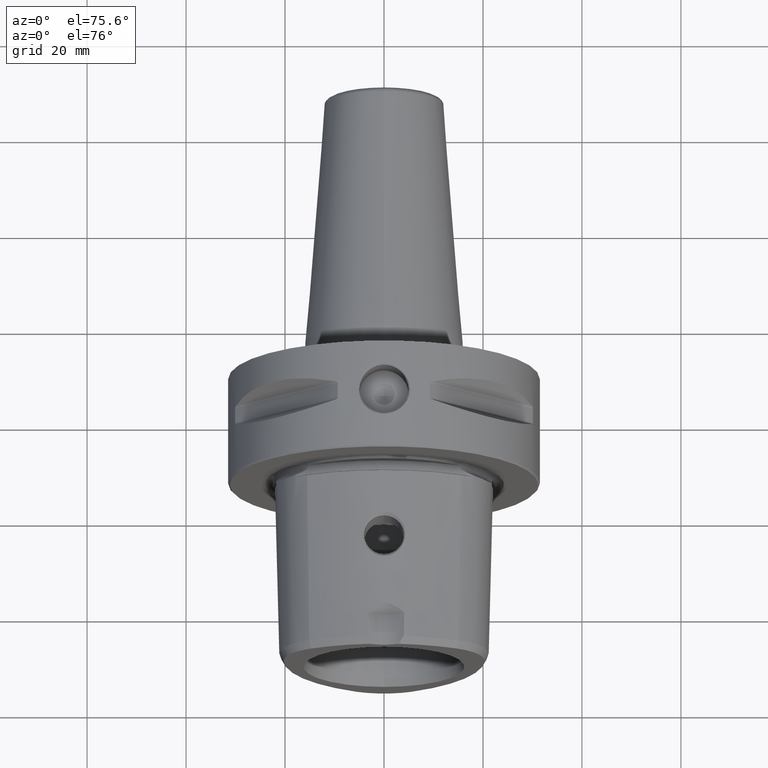
[diagram: clean part render]
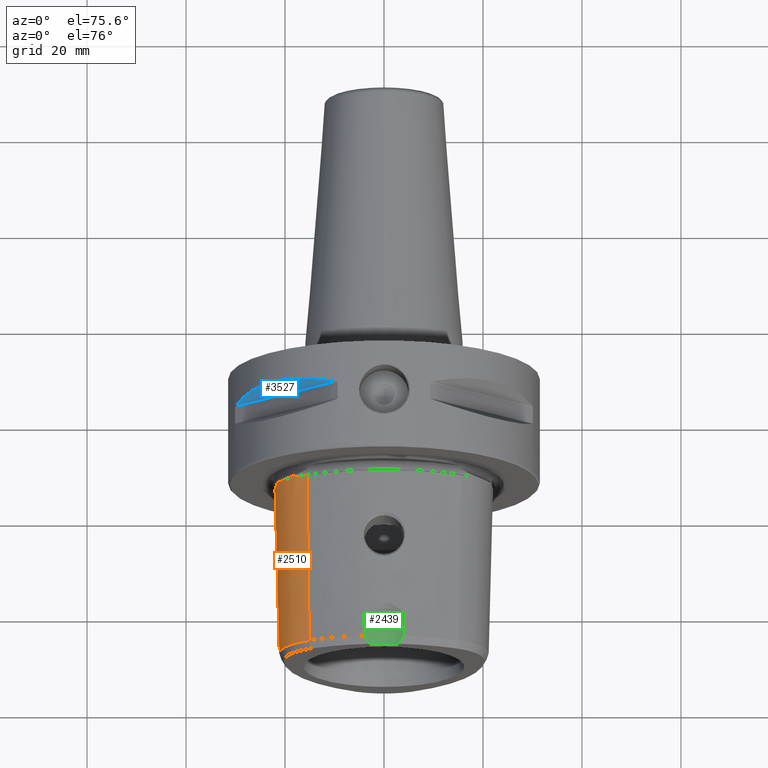
[diagram: same view with three faces highlighted in distinct colors, each labeled with its STEP entity id]
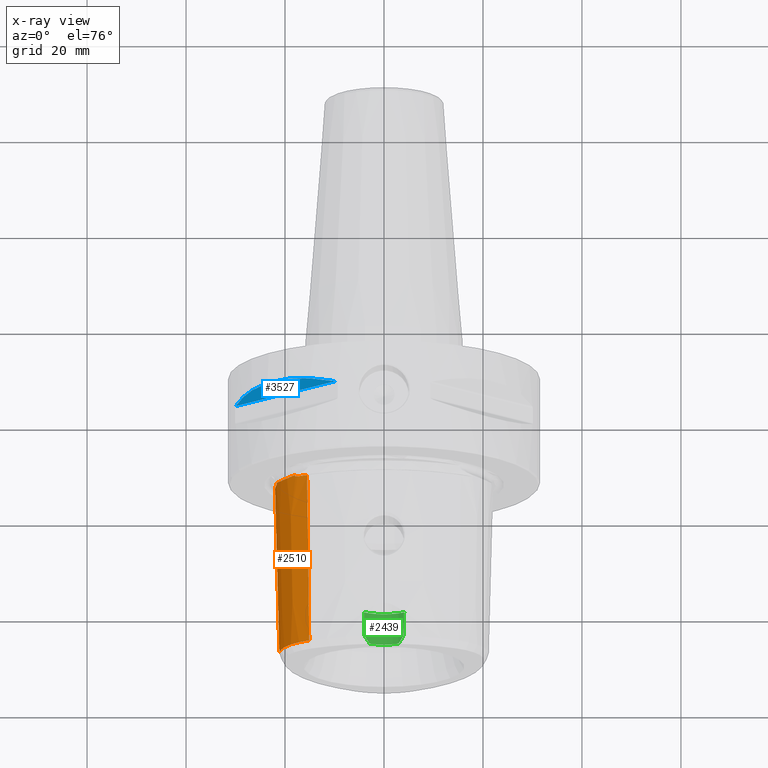
[diagram: x-ray of the same camera — body ghosted, the three highlighted faces saturated]
A machine part, auxiliary view with three faces highlighted in distinct colors.
The next image is the same camera in x-ray (body ghosted, the three faces saturated) — at least one of them is partly hidden behind the body in this view.
Their STEP definitions:

[orange] entity #2510 — the highlighted conical surface has half-angle 1.439 deg.
#147=CARTESIAN_POINT('',(-2.168902906534E1,-1.746971249170E0,8.186957442652E0));
#154=CARTESIAN_POINT('',(-1.793462765771E1,-1.746971249170E0,1.468977143267E1));
#508=DIRECTION('',(-1.255777780594E-2,9.996845546803E-1,2.175070919006E-2));
#509=VECTOR('',#508,3.431088629756E1);
#510=CARTESIAN_POINT('',(-1.510405282893E1,-3.65E1,1.571124463872E1));
#511=LINE('',#510,#509);
#552=CARTESIAN_POINT('',(-2.202010036957E1,-2.199936910936E0,5.224871130596E0));
#553=CARTESIAN_POINT('',(-2.202010036957E1,-2.199936910936E0,5.313450229064E0));
#554=CARTESIAN_POINT('',(-2.201828506148E1,-2.199913733057E0,5.483990495859E0));
#555=CARTESIAN_POINT('',(-2.201134037997E1,-2.199764583668E0,5.719067531287E0));
#556=CARTESIAN_POINT('',(-2.200117656757E1,-2.199392855793E0,5.935743403557E0));
#557=CARTESIAN_POINT('',(-2.198860707624E1,-2.198683608775E0,6.135404295798E0));
#558=CARTESIAN_POINT('',(-2.197429587373E1,-2.197538869152E0,6.319465420987E0));
#559=CARTESIAN_POINT('',(-2.195878048977E1,-2.195886930513E0,6.489183552910E0));
#560=CARTESIAN_POINT('',(-2.194249525569E1,-2.193682966497E0,6.645715457185E0));
#561=CARTESIAN_POINT('',(-2.192578883144E1,-2.190905721795E0,6.790117700278E0));
#562=CARTESIAN_POINT('',(-2.190893976831E1,-2.187552865413E0,6.923354597004E0));
#563=CARTESIAN_POINT('',(-2.189216886843E1,-2.183636195676E0,7.046306706400E0));
#564=CARTESIAN_POINT('',(-2.187564944559E1,-2.179177301842E0,7.159778881057E0));
#565=CARTESIAN_POINT('',(-2.185951580585E1,-2.174203890185E0,7.264507263783E0));
#566=CARTESIAN_POINT('',(-2.184387025935E1,-2.168746772742E0,7.361165698900E0));
#567=CARTESIAN_POINT('',(-2.182878896326E1,-2.162837448864E0,7.450371277668E0));
#568=CARTESIAN_POINT('',(-2.181432674602E1,-2.156506142277E0,7.532689519417E0));
#569=CARTESIAN_POINT('',(-2.180052100305E1,-2.149780098490E0,7.608639599094E0));
#570=CARTESIAN_POINT('',(-2.178739526656E1,-2.142682218305E0,7.678697171789E0));
#571=CARTESIAN_POINT('',(-2.177496215309E1,-2.135229749279E0,7.743297359324E0));
#572=CARTESIAN_POINT('',(-2.176322580334E1,-2.127432837364E0,7.802837672955E0));
#573=CARTESIAN_POINT('',(-2.175218406350E1,-2.119292804325E0,7.857680042621E0));
#574=CARTESIAN_POINT('',(-2.174183043989E1,-2.110799810021E0,7.908152254458E0));
#575=CARTESIAN_POINT('',(-2.173215596914E1,-2.101929406762E0,7.954548465793E0));
#576=CARTESIAN_POINT('',(-2.172315172762E1,-2.092637625183E0,7.997125821421E0));
#577=CARTESIAN_POINT('',(-2.171481087263E1,-2.082852076065E0,8.036103047357E0));
#578=CARTESIAN_POINT('',(-2.170713133608E1,-2.072454062778E0,8.071656081692E0));
#579=CARTESIAN_POINT('',(-2.170012669870E1,-2.061256541772E0,8.103878287868E0));
#580=CARTESIAN_POINT('',(-2.169383417972E1,-2.048927500531E0,8.132759392694E0));
#581=CARTESIAN_POINT('',(-2.168837890287E1,-2.034920692420E0,8.157924861110E0));
#582=CARTESIAN_POINT('',(-2.168401050674E1,-2.017899461639E0,8.178547840457E0));
#583=CARTESIAN_POINT('',(-2.168266250964E1,-2.003214212505E0,8.185909498001E0));
#584=CARTESIAN_POINT('',(-2.168286717235E1,-1.994976888878E0,8.185943186742E0));
#586=DIRECTION('',(2.483790482961E-2,-9.996831317252E-1,-4.088352688433E-3));
#587=VECTOR('',#586,2.480842497356E-1);
#588=CARTESIAN_POINT('',(-2.168902906534E1,-1.746971249170E0,8.186957442652E0));
#589=LINE('',#588,#587);
#590=CARTESIAN_POINT('',(-2.168902906534E1,-1.746971249170E0,8.186957442652E0));
#591=CARTESIAN_POINT('',(-2.154174266391E1,-1.827970129837E0,8.806513181206E0));
#592=CARTESIAN_POINT('',(-2.115721745400E1,-1.949336030262E0,1.002213380082E1));
#593=CARTESIAN_POINT('',(-2.032664343815E1,-2.009730819679E0,1.173562637588E1));
#594=CARTESIAN_POINT('',(-1.925798277759E1,-1.949330900499E0,1.331168143785E1));
#595=CARTESIAN_POINT('',(-1.839751311818E1,-1.827966219514E0,1.425246091086E1));
#596=CARTESIAN_POINT('',(-1.793462765771E1,-1.746971249170E0,1.468977143267E1));
#598=DIRECTION('',(-1.595956970232E-2,9.996831317252E-1,1.946608021525E-2));
#599=VECTOR('',#598,2.480842497357E-1);
#600=CARTESIAN_POINT('',(-1.793066833983E1,-1.994976888878E0,1.468494220477E1));
#601=LINE('',#600,#599);
#602=CARTESIAN_POINT('',(-1.793066833983E1,-1.994976888878E0,1.468494220477E1));
#603=CARTESIAN_POINT('',(-1.793053603458E1,-2.003264234523E0,1.468478083199E1));
#604=CARTESIAN_POINT('',(-1.792476534015E1,-2.018004063528E0,1.468969220777E1));
#605=CARTESIAN_POINT('',(-1.790910815403E1,-2.034958022813E0,1.470377145192E1));
#606=CARTESIAN_POINT('',(-1.789006979660E1,-2.048941331119E0,1.472105319385E1));
#607=CARTESIAN_POINT('',(-1.786824793642E1,-2.061244642322E0,1.474090353762E1));
#608=CARTESIAN_POINT('',(-1.784388692597E1,-2.072427316018E0,1.476304278589E1));
#609=CARTESIAN_POINT('',(-1.781697790120E1,-2.082814748309E0,1.478743302659E1));
#610=CARTESIAN_POINT('',(-1.778743318587E1,-2.092593142949E0,1.481410928314E1));
#611=CARTESIAN_POINT('',(-1.775510576467E1,-2.101878953027E0,1.484315752383E1));
#612=CARTESIAN_POINT('',(-1.771980997012E1,-2.110744478235E0,1.487469288026E1));
#613=CARTESIAN_POINT('',(-1.768132636302E1,-2.119233865083E0,1.490885287543E1));
#614=CARTESIAN_POINT('',(-1.763940420582E1,-2.127371538306E0,1.494579290993E1));
#615=CARTESIAN_POINT('',(-1.759376260416E1,-2.135167273846E0,1.498568288517E1));
#616=CARTESIAN_POINT('',(-1.754408899277E1,-2.142619685856E0,1.502870596449E1));
#617=CARTESIAN_POINT('',(-1.749003576914E1,-2.149718696268E0,1.507505857637E1));
#618=CARTESIAN_POINT('',(-1.743121834362E1,-2.156447065383E0,1.512494872777E1));
#619=CARTESIAN_POINT('',(-1.736721133286E1,-2.162781850770E0,1.517859538360E1));
#620=CARTESIAN_POINT('',(-1.729754455301E1,-2.168695702473E0,1.523622733658E1));
#621=CARTESIAN_POINT('',(-1.722169952368E1,-2.174158183316E0,1.529808090668E1));
#622=CARTESIAN_POINT('',(-1.713910303422E1,-2.179137519248E0,1.536439917177E1));
#623=CARTESIAN_POINT('',(-1.704911946176E1,-2.183602634031E0,1.543543102056E1));
#624=CARTESIAN_POINT('',(-1.695104306781E1,-2.187525559681E0,1.551142882366E1));
#625=CARTESIAN_POINT('',(-1.684408892593E1,-2.190884450841E0,1.559264555247E1));
#626=CARTESIAN_POINT('',(-1.672738245894E1,-2.193667267213E0,1.567933102493E1));
#627=CARTESIAN_POINT('',(-1.659994766294E1,-2.195876114728E0,1.577172674388E1));
#628=CARTESIAN_POINT('',(-1.646069272821E1,-2.197532078017E0,1.587006007900E1));
#629=CARTESIAN_POINT('',(-1.630839540982E1,-2.198679857915E0,1.597453433422E1));
#630=CARTESIAN_POINT('',(-1.614169740228E1,-2.199391161425E0,1.608531239633E1));
#631=CARTESIAN_POINT('',(-1.595901232316E1,-2.199764022414E0,1.620254175179E1));
#632=CARTESIAN_POINT('',(-1.575886009480E1,-2.199913608017E0,1.632613315317E1));
#633=CARTESIAN_POINT('',(-1.561180593810E1,-2.199936910936E0,1.641314139101E1));
#634=CARTESIAN_POINT('',(-1.553492131538E1,-2.199936910936E0,1.645753074864E1));
#636=CARTESIAN_POINT('',(-9.049742261193E0,-3.65E1,5.224871130596E0));
#637=DIRECTION('',(0.E0,1.E0,0.E0));
#638=DIRECTION('',(-1.E0,0.E0,0.E0));
#639=AXIS2_PLACEMENT_3D('',#636,#637,#638);
#641=DIRECTION('',(-2.511555561190E-2,9.996845546803E-1,0.E0));
#642=VECTOR('',#641,3.431088629756E1);
#643=CARTESIAN_POINT('',(-2.115836339667E1,-3.65E1,5.224871130596E0));
#644=LINE('',#643,#642);
#1948=VERTEX_POINT('',#602);
#1949=VERTEX_POINT('',#634);
#1957=VERTEX_POINT('',#154);
#1965=CARTESIAN_POINT('',(-2.202010036957E1,-2.199936910936E0,
5.224871130596E0));
#1966=VERTEX_POINT('',#1965);
#1971=VERTEX_POINT('',#584);
#1973=VERTEX_POINT('',#147);
#2041=CARTESIAN_POINT('',(-2.115836339667E1,-3.65E1,5.224871130596E0));
#2043=VERTEX_POINT('',#2041);
#2044=CARTESIAN_POINT('',(-1.510405282893E1,-3.65E1,1.571124463872E1));
#2045=VERTEX_POINT('',#2044);
#2492=CARTESIAN_POINT('',(-9.049742261193E0,-1.912348562459E1,
5.224871130596E0));
#2493=DIRECTION('',(0.E0,1.E0,0.E0));
#2494=DIRECTION('',(1.E0,0.E0,0.E0));
#2495=AXIS2_PLACEMENT_3D('',#2492,#2493,#2494);
#2496=CONICAL_SURFACE('',#2495,1.254517965896E1,1.439166666E0);
#2498=ORIENTED_EDGE('',*,*,#2497,.T.);
#2499=ORIENTED_EDGE('',*,*,#2187,.F.);
#2500=ORIENTED_EDGE('',*,*,#2211,.T.);
#2501=ORIENTED_EDGE('',*,*,#2264,.F.);
#2502=ORIENTED_EDGE('',*,*,#2483,.T.);
#2503=ORIENTED_EDGE('',*,*,#2467,.F.);
#2505=ORIENTED_EDGE('',*,*,#2504,.F.);
#2507=ORIENTED_EDGE('',*,*,#2506,.T.);
#2508=EDGE_LOOP('',(#2498,#2499,#2500,#2501,#2502,#2503,#2505,#2507));
#2509=FACE_OUTER_BOUND('',#2508,.F.);
#2510=ADVANCED_FACE('',(#2509),#2496,.T.);
#585=B_SPLINE_CURVE_WITH_KNOTS('',3,(#552,#553,#554,#555,#556,#557,#558,#559,
#560,#561,#562,#563,#564,#565,#566,#567,#568,#569,#570,#571,#572,#573,#574,#575,
#576,#577,#578,#579,#580,#581,#582,#583,#584),.UNSPECIFIED.,.F.,.F.,(4,1,1,1,1,
1,1,1,1,1,1,1,1,1,1,1,1,1,1,1,1,1,1,1,1,1,1,1,1,1,4),(0.E0,3.333333333333E-2,
6.666666666667E-2,1.E-1,1.333333333333E-1,1.666666666667E-1,2.E-1,
2.333333333333E-1,2.666666666667E-1,3.E-1,3.333333333333E-1,3.666666666667E-1,
4.E-1,4.333333333333E-1,4.666666666667E-1,5.E-1,5.333333333333E-1,
5.666666666667E-1,6.E-1,6.333333333333E-1,6.666666666667E-1,7.E-1,
7.333333333333E-1,7.666666666667E-1,8.E-1,8.333333333333E-1,8.666666666667E-1,
9.E-1,9.333333333333E-1,9.666666666667E-1,1.E0),.UNSPECIFIED.);
#597=B_SPLINE_CURVE_WITH_KNOTS('',3,(#590,#591,#592,#593,#594,#595,#596),
.UNSPECIFIED.,.F.,.F.,(4,1,1,1,4),(0.E0,2.5E-1,5.E-1,7.5E-1,1.E0),
.UNSPECIFIED.);
#635=B_SPLINE_CURVE_WITH_KNOTS('',3,(#602,#603,#604,#605,#606,#607,#608,#609,
#610,#611,#612,#613,#614,#615,#616,#617,#618,#619,#620,#621,#622,#623,#624,#625,
#626,#627,#628,#629,#630,#631,#632,#633,#634),.UNSPECIFIED.,.F.,.F.,(4,1,1,1,1,
1,1,1,1,1,1,1,1,1,1,1,1,1,1,1,1,1,1,1,1,1,1,1,1,1,4),(0.E0,3.333333333333E-2,
6.666666666667E-2,1.E-1,1.333333333333E-1,1.666666666667E-1,2.E-1,
2.333333333333E-1,2.666666666667E-1,3.E-1,3.333333333333E-1,3.666666666667E-1,
4.E-1,4.333333333333E-1,4.666666666667E-1,5.E-1,5.333333333333E-1,
5.666666666667E-1,6.E-1,6.333333333333E-1,6.666666666667E-1,7.E-1,
7.333333333333E-1,7.666666666667E-1,8.E-1,8.333333333333E-1,8.666666666667E-1,
9.E-1,9.333333333333E-1,9.666666666667E-1,1.E0),.UNSPECIFIED.);
#640=CIRCLE('',#639,1.210862113548E1);
#2187=EDGE_CURVE('',#1973,#1971,#589,.T.);
#2211=EDGE_CURVE('',#1973,#1957,#597,.T.);
#2264=EDGE_CURVE('',#1948,#1957,#601,.T.);
#2467=EDGE_CURVE('',#2045,#1949,#511,.T.);
#2483=EDGE_CURVE('',#1948,#1949,#635,.T.);
#2497=EDGE_CURVE('',#1966,#1971,#585,.T.);
#2504=EDGE_CURVE('',#2043,#2045,#640,.T.);
#2506=EDGE_CURVE('',#2043,#1966,#644,.T.);

[blue] entity #3527 — the highlighted planar face has unit normal (0.3536, 0.866, -0.3536).
#1415=CARTESIAN_POINT('',(-9.869412618966E0,1.389433756730E1,2.991395484647E1));
#1416=CARTESIAN_POINT('',(-1.238139844501E1,1.458150705601E1,2.908518363459E1));
#1417=CARTESIAN_POINT('',(-1.689097893205E1,1.553584740593E1,2.691325004580E1));
#1418=CARTESIAN_POINT('',(-2.245973816660E1,1.599114523220E1,2.245973816660E1));
#1419=CARTESIAN_POINT('',(-2.691325004580E1,1.553584740593E1,1.689097893205E1));
#1420=CARTESIAN_POINT('',(-2.908518363459E1,1.458150705601E1,1.238139844501E1));
#1421=CARTESIAN_POINT('',(-2.991395484647E1,1.389433756730E1,9.869412618966E0));
#1585=DIRECTION('',(7.071067811865E-1,0.E0,7.071067811865E-1));
#1586=VECTOR('',#1585,2.834726346969E1);
#1587=CARTESIAN_POINT('',(-2.991395484647E1,1.389433756730E1,9.869412618966E0));
#1588=LINE('',#1587,#1586);
#1926=CARTESIAN_POINT('',(-2.991395484647E1,1.389433756730E1,9.869412618966E0));
#1927=CARTESIAN_POINT('',(-9.869412618966E0,1.389433756730E1,2.991395484647E1));
#1928=VERTEX_POINT('',#1926);
#1929=VERTEX_POINT('',#1927);
#3518=CARTESIAN_POINT('',(1.689359558895E1,1.583937929011E1,6.144132280370E1));
#3519=DIRECTION('',(3.535533905933E-1,8.660254037844E-1,-3.535533905933E-1));
#3520=DIRECTION('',(6.123724356958E-1,-5.E-1,-6.123724356958E-1));
#3521=AXIS2_PLACEMENT_3D('',#3518,#3519,#3520);
#3522=PLANE('',#3521);
#3523=ORIENTED_EDGE('',*,*,#3512,.F.);
#3524=ORIENTED_EDGE('',*,*,#3395,.F.);
#3525=EDGE_LOOP('',(#3523,#3524));
#3526=FACE_OUTER_BOUND('',#3525,.F.);
#3527=ADVANCED_FACE('',(#3526),#3522,.F.);
#1422=B_SPLINE_CURVE_WITH_KNOTS('',3,(#1415,#1416,#1417,#1418,#1419,#1420,
#1421),.UNSPECIFIED.,.F.,.F.,(4,1,1,1,4),(0.E0,2.5E-1,5.E-1,7.5E-1,1.E0),
.UNSPECIFIED.);
#3395=EDGE_CURVE('',#1929,#1928,#1422,.T.);
#3512=EDGE_CURVE('',#1928,#1929,#1588,.T.);

[green] entity #2439 — the highlighted cylindrical surface (edge-blend (fillet) strip) has radius 6 mm, axis along (0, 1, 0).
#454=CARTESIAN_POINT('',(0.E0,-3.8E1,2.4E1));
#455=DIRECTION('',(0.E0,1.E0,0.E0));
#456=DIRECTION('',(4.836645555972E-1,0.E0,-8.752534476704E-1));
#457=AXIS2_PLACEMENT_3D('',#454,#455,#456);
#474=CARTESIAN_POINT('',(0.E0,-3.165E1,2.4E1));
#475=DIRECTION('',(0.E0,1.E0,0.E0));
#476=DIRECTION('',(6.805968584649E-1,0.E0,-7.326581168920E-1));
#477=AXIS2_PLACEMENT_3D('',#474,#475,#476);
#489=CARTESIAN_POINT('',(4.083581150789E0,-3.165E1,1.960405129865E1));
#490=CARTESIAN_POINT('',(4.070457658553E0,-3.220115328868E1,1.959186033620E1));
#491=CARTESIAN_POINT('',(4.044187665875E0,-3.329528064835E1,1.956767602542E1));
#492=CARTESIAN_POINT('',(4.004731201004E0,-3.491169764686E1,1.953199539320E1));
#493=CARTESIAN_POINT('',(3.978388771178E0,-3.597326597985E1,1.950859363950E1));
#494=CARTESIAN_POINT('',(3.965210897225E0,-3.65E1,1.949698961354E1));
#496=CARTESIAN_POINT('',(-3.965210897225E0,-3.65E1,1.949698961354E1));
#497=CARTESIAN_POINT('',(-3.978388761738E0,-3.597326635717E1,1.950859363119E1));
#498=CARTESIAN_POINT('',(-4.004731162626E0,-3.491169902479E1,1.953199536313E1));
#499=CARTESIAN_POINT('',(-4.044186600750E0,-3.329532457181E1,1.956767505534E1));
#500=CARTESIAN_POINT('',(-4.070457205245E0,-3.220117232647E1,1.959185991511E1));
#501=CARTESIAN_POINT('',(-4.083581150789E0,-3.165E1,1.960405129865E1));
#681=CARTESIAN_POINT('',(-2.901987333583E0,-3.8E1,1.874847931398E1));
#682=CARTESIAN_POINT('',(-3.028890284763E0,-3.785739398053E1,1.881860581236E1));
#683=CARTESIAN_POINT('',(-3.276920174043E0,-3.755548787067E1,1.896765710284E1));
#684=CARTESIAN_POINT('',(-3.631743271625E0,-3.705431684078E1,1.921740278639E1));
#685=CARTESIAN_POINT('',(-3.856125803281E0,-3.668973692817E1,1.940093267250E1));
#686=CARTESIAN_POINT('',(-3.965210897225E0,-3.65E1,1.949698961354E1));
#688=CARTESIAN_POINT('',(3.965210897225E0,-3.65E1,1.949698961354E1));
#689=CARTESIAN_POINT('',(3.856185781856E0,-3.668963260456E1,1.940098548776E1));
#690=CARTESIAN_POINT('',(3.631896273467E0,-3.705407894853E1,1.921752211057E1));
#691=CARTESIAN_POINT('',(3.277103698003E0,-3.755525061720E1,1.896777462187E1));
#692=CARTESIAN_POINT('',(3.028976352836E0,-3.785729726233E1,1.881865337353E1));
#693=CARTESIAN_POINT('',(2.901987333583E0,-3.8E1,1.874847931398E1));
#1862=VERTEX_POINT('',#496);
#1863=VERTEX_POINT('',#501);
#1864=VERTEX_POINT('',#489);
#1865=VERTEX_POINT('',#494);
#1944=CARTESIAN_POINT('',(2.901987333583E0,-3.8E1,1.874847931398E1));
#1945=CARTESIAN_POINT('',(-2.901987333583E0,-3.8E1,1.874847931398E1));
#1946=VERTEX_POINT('',#1944);
#1947=VERTEX_POINT('',#1945);
#2421=CARTESIAN_POINT('',(0.E0,-3.86175E1,2.4E1));
#2422=DIRECTION('',(0.E0,1.E0,0.E0));
#2423=DIRECTION('',(0.E0,0.E0,-1.E0));
#2424=AXIS2_PLACEMENT_3D('',#2421,#2422,#2423);
#2425=CYLINDRICAL_SURFACE('',#2424,6.E0);
#2427=ORIENTED_EDGE('',*,*,#2426,.F.);
#2429=ORIENTED_EDGE('',*,*,#2428,.T.);
#2431=ORIENTED_EDGE('',*,*,#2430,.T.);
#2432=ORIENTED_EDGE('',*,*,#2397,.T.);
#2434=ORIENTED_EDGE('',*,*,#2433,.T.);
#2436=ORIENTED_EDGE('',*,*,#2435,.T.);
#2437=EDGE_LOOP('',(#2427,#2429,#2431,#2432,#2434,#2436));
#2438=FACE_OUTER_BOUND('',#2437,.F.);
#2439=ADVANCED_FACE('',(#2438),#2425,.F.);
#458=CIRCLE('',#457,6.E0);
#478=CIRCLE('',#477,6.E0);
#495=B_SPLINE_CURVE_WITH_KNOTS('',3,(#489,#490,#491,#492,#493,#494),
.UNSPECIFIED.,.F.,.F.,(4,1,1,4),(0.E0,3.333333333333E-1,6.666666666667E-1,1.E0),
.UNSPECIFIED.);
#502=B_SPLINE_CURVE_WITH_KNOTS('',3,(#496,#497,#498,#499,#500,#501),
.UNSPECIFIED.,.F.,.F.,(4,1,1,4),(0.E0,3.333333333333E-1,6.666666666667E-1,1.E0),
.UNSPECIFIED.);
#687=B_SPLINE_CURVE_WITH_KNOTS('',3,(#681,#682,#683,#684,#685,#686),
.UNSPECIFIED.,.F.,.F.,(4,1,1,4),(0.E0,3.333333333333E-1,6.666666666667E-1,1.E0),
.UNSPECIFIED.);
#694=B_SPLINE_CURVE_WITH_KNOTS('',3,(#688,#689,#690,#691,#692,#693),
.UNSPECIFIED.,.F.,.F.,(4,1,1,4),(0.E0,3.333333333333E-1,6.666666666667E-1,1.E0),
.UNSPECIFIED.);
#2397=EDGE_CURVE('',#1946,#1947,#458,.T.);
#2426=EDGE_CURVE('',#1864,#1863,#478,.T.);
#2428=EDGE_CURVE('',#1864,#1865,#495,.T.);
#2430=EDGE_CURVE('',#1865,#1946,#694,.T.);
#2433=EDGE_CURVE('',#1947,#1862,#687,.T.);
#2435=EDGE_CURVE('',#1862,#1863,#502,.T.);